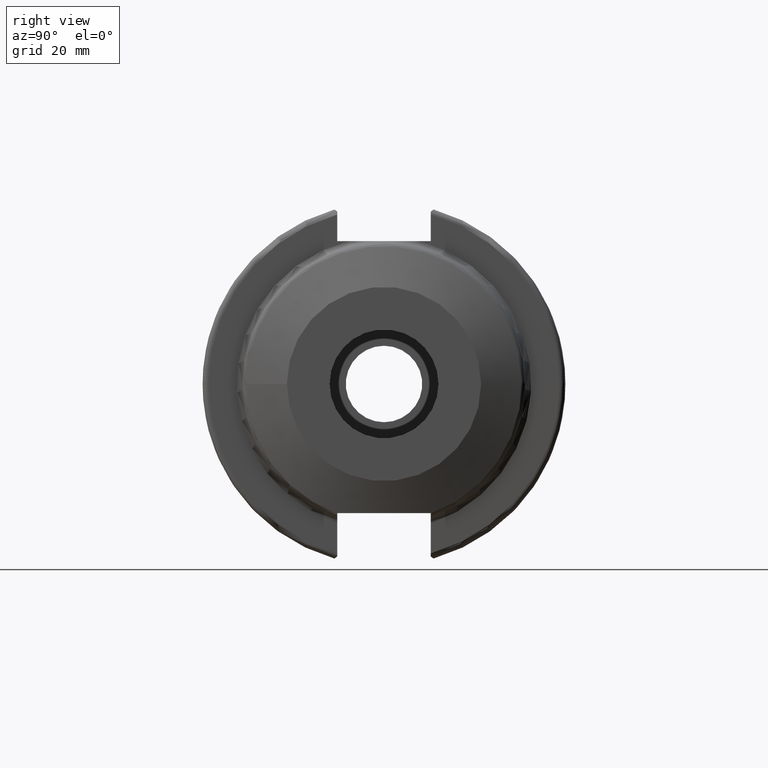
[diagram: clean part render]
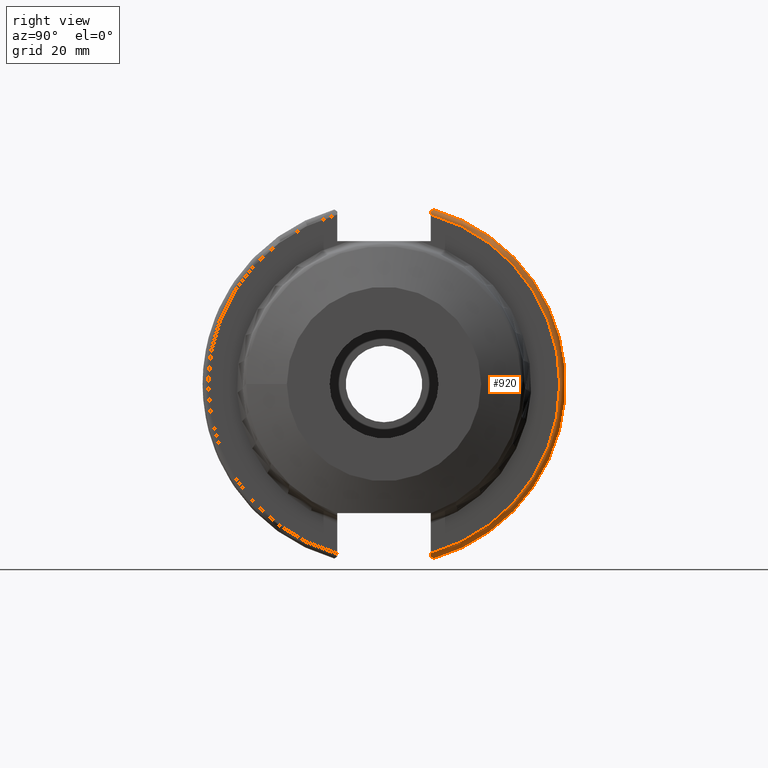
[diagram: same view with one face highlighted and labeled with its STEP entity id]
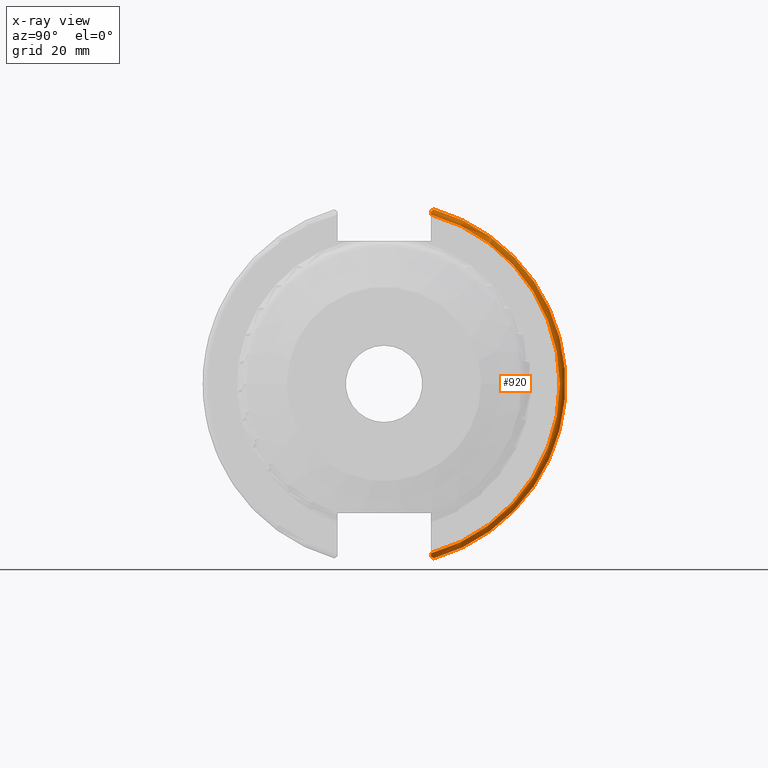
[diagram: x-ray of the same camera — body ghosted, the highlighted face saturated]
A machine part, right view. The second image highlights one B-rep face of the part: STEP entity #920.
The next image is the same camera in x-ray: the body ghosted, the highlighted face saturated — about 0% of this face is hidden behind the body in this view.
In plain terms, the highlighted toroidal blend (fillet) surface has major radius 30.75 mm and minor (blend) radius 1 mm.
Its self-contained STEP definition (entity closure, byte-faithful):
#209=FACE_OUTER_BOUND('',#264,.T.);
#264=EDGE_LOOP('',(#687,#688,#689,#690,#691,#692));
#325=CIRCLE('',#1015,30.75);
#326=CIRCLE('',#1016,31.75);
#356=B_SPLINE_CURVE_WITH_KNOTS('',3,(#1403,#1404,#1405,#1406,#1407,#1408),
 .UNSPECIFIED.,.F.,.F.,(4,2,4),(0.452741154494497,0.491581665024871,0.505824174364157),
 .UNSPECIFIED.);
#361=B_SPLINE_CURVE_WITH_KNOTS('',3,(#1519,#1520,#1521,#1522,#1523,#1524),
 .UNSPECIFIED.,.F.,.F.,(4,2,4),(0.0977210450333169,0.111963554372601,0.150804064902975),
 .UNSPECIFIED.);
#362=B_SPLINE_CURVE_WITH_KNOTS('',3,(#1527,#1528,#1529,#1530,#1531,#1532,
#1533,#1534),.UNSPECIFIED.,.F.,.F.,(4,2,2,4),(-0.104180282751876,-0.0729784742461442,
-0.034352475387498,0.),.UNSPECIFIED.);
#363=B_SPLINE_CURVE_WITH_KNOTS('',3,(#1537,#1538,#1539,#1540,#1541,#1542,
#1543,#1544),.UNSPECIFIED.,.F.,.F.,(4,2,2,4),(0.,0.0364423539742875,0.0778717450894454,
0.104302157163828),.UNSPECIFIED.);
#390=VERTEX_POINT('',#1400);
#391=VERTEX_POINT('',#1402);
#414=VERTEX_POINT('',#1517);
#415=VERTEX_POINT('',#1518);
#416=VERTEX_POINT('',#1526);
#417=VERTEX_POINT('',#1535);
#486=EDGE_CURVE('',#391,#390,#356,.T.);
#521=EDGE_CURVE('',#414,#415,#361,.T.);
#522=EDGE_CURVE('',#415,#391,#325,.T.);
#523=EDGE_CURVE('',#390,#416,#362,.T.);
#524=EDGE_CURVE('',#416,#417,#326,.T.);
#525=EDGE_CURVE('',#417,#414,#363,.T.);
#687=ORIENTED_EDGE('',*,*,#521,.T.);
#688=ORIENTED_EDGE('',*,*,#522,.T.);
#689=ORIENTED_EDGE('',*,*,#486,.T.);
#690=ORIENTED_EDGE('',*,*,#523,.T.);
#691=ORIENTED_EDGE('',*,*,#524,.T.);
#692=ORIENTED_EDGE('',*,*,#525,.T.);
#902=TOROIDAL_SURFACE('',#1014,30.75,1.);
#920=ADVANCED_FACE('',(#209),#902,.T.);
#1014=AXIS2_PLACEMENT_3D('',#1516,#1166,#1167);
#1015=AXIS2_PLACEMENT_3D('',#1525,#1168,#1169);
#1016=AXIS2_PLACEMENT_3D('',#1536,#1170,#1171);
#1166=DIRECTION('center_axis',(1.,0.,0.));
#1167=DIRECTION('ref_axis',(0.,0.,-1.));
#1168=DIRECTION('center_axis',(-1.,0.,0.));
#1169=DIRECTION('ref_axis',(0.,1.,-6.12323399573677E-17));
#1170=DIRECTION('center_axis',(1.,0.,0.));
#1171=DIRECTION('ref_axis',(0.,1.,-6.12323399573677E-17));
#1400=CARTESIAN_POINT('',(18.9058722749097,8.19,-30.1755016258903));
#1402=CARTESIAN_POINT('',(19.05,8.19,-29.6392712461019));
#1403=CARTESIAN_POINT('Ctrl Pts',(19.05,8.19,-29.6392712461019));
#1404=CARTESIAN_POINT('Ctrl Pts',(19.05,8.19,-29.7687396145364));
#1405=CARTESIAN_POINT('Ctrl Pts',(19.0204855670831,8.19,-29.9212724384851));
#1406=CARTESIAN_POINT('Ctrl Pts',(18.9539643471756,8.19,-30.0852355256475));
#1407=CARTESIAN_POINT('Ctrl Pts',(18.9318163728133,8.19,-30.131014531546));
#1408=CARTESIAN_POINT('Ctrl Pts',(18.9058722749097,8.19,-30.1755016258903));
#1516=CARTESIAN_POINT('Origin',(18.05,0.,0.));
#1517=CARTESIAN_POINT('',(18.9058722749097,8.19,30.1755016258903));
#1518=CARTESIAN_POINT('',(19.05,8.19,29.6392712461019));
#1519=CARTESIAN_POINT('Ctrl Pts',(18.9058722749097,8.19,30.1755016258903));
#1520=CARTESIAN_POINT('Ctrl Pts',(18.9318163728133,8.19,30.131014531546));
#1521=CARTESIAN_POINT('Ctrl Pts',(18.9539643471756,8.19,30.0852355256475));
#1522=CARTESIAN_POINT('Ctrl Pts',(19.020485567083,8.19,29.9212724384851));
#1523=CARTESIAN_POINT('Ctrl Pts',(19.05,8.19,29.7687396145364));
#1524=CARTESIAN_POINT('Ctrl Pts',(19.05,8.19,29.6392712461019));
#1525=CARTESIAN_POINT('Origin',(19.05,0.,0.));
#1526=CARTESIAN_POINT('',(18.05,8.67204822802685,-30.5427254764662));
#1527=CARTESIAN_POINT('Ctrl Pts',(18.9058722749097,8.19,-30.1755016258903));
#1528=CARTESIAN_POINT('Ctrl Pts',(18.8574463042989,8.2703682833078,-30.2367261024977));
#1529=CARTESIAN_POINT('Ctrl Pts',(18.7926702662319,8.34909446036477,-30.2966996242308));
#1530=CARTESIAN_POINT('Ctrl Pts',(18.6396724190507,8.48862804755883,-30.4029961692546));
#1531=CARTESIAN_POINT('Ctrl Pts',(18.5184414294771,8.56482138642532,-30.4610401774263));
#1532=CARTESIAN_POINT('Ctrl Pts',(18.2983170433775,8.6471881193939,-30.5237870709558));
#1533=CARTESIAN_POINT('Ctrl Pts',(18.1645082512917,8.67204822802685,-30.5427254764662));
#1534=CARTESIAN_POINT('Ctrl Pts',(18.05,8.67204822802685,-30.5427254764662));
#1535=CARTESIAN_POINT('',(18.05,8.67204822802685,30.5427254764662));
#1536=CARTESIAN_POINT('Origin',(18.05,0.,0.));
#1537=CARTESIAN_POINT('Ctrl Pts',(18.05,8.67204822802685,30.5427254764662));
#1538=CARTESIAN_POINT('Ctrl Pts',(18.1714745132476,8.67204822802685,30.5427254764662));
#1539=CARTESIAN_POINT('Ctrl Pts',(18.3129472218859,8.64410239894262,30.5214363722497));
#1540=CARTESIAN_POINT('Ctrl Pts',(18.545044361706,8.551646780666,30.4510037761381));
#1541=CARTESIAN_POINT('Ctrl Pts',(18.6711011886212,8.466075303358,30.3858155116254));
#1542=CARTESIAN_POINT('Ctrl Pts',(18.8119751533981,8.32529543089523,30.2785695477496));
#1543=CARTESIAN_POINT('Ctrl Pts',(18.8644673620074,8.25871605728283,30.2278494485451));
#1544=CARTESIAN_POINT('Ctrl Pts',(18.9058722749097,8.19,30.1755016258903));